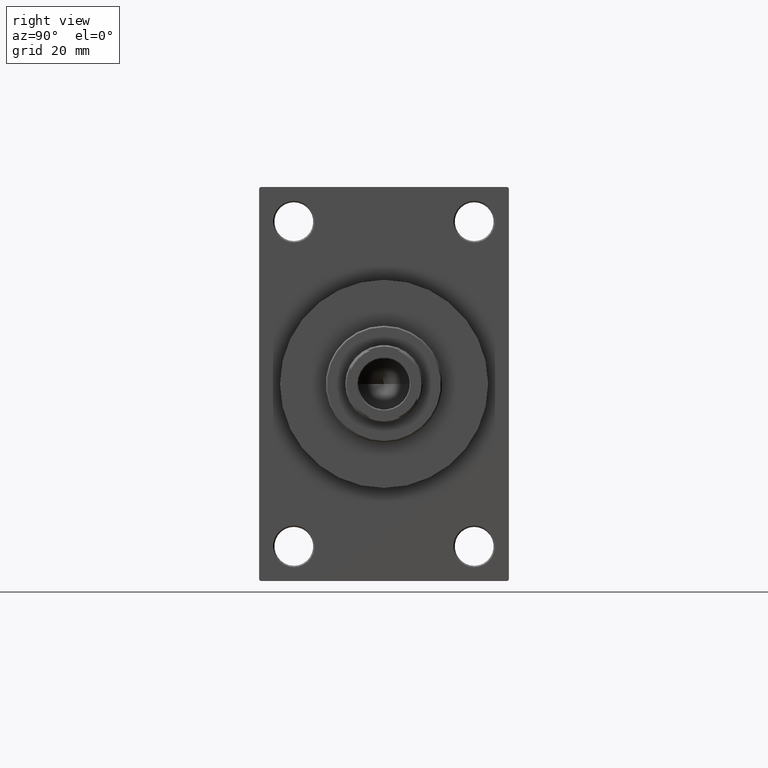
[diagram: clean part render]
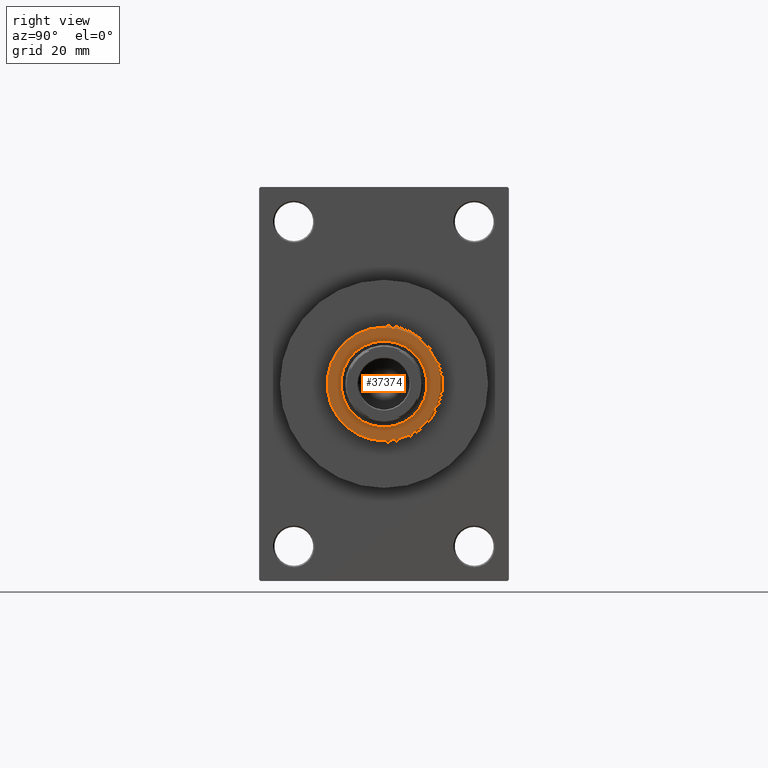
[diagram: same view with one face highlighted and labeled with its STEP entity id]
A machine part, right view. The second image highlights one B-rep face of the part: STEP entity #37374.
In plain terms, the highlighted planar face has unit normal (1, -0, -0).
Its self-contained STEP definition (entity closure, byte-faithful):
#376 = DIRECTION ( 'NONE',  ( 1.000000000000000000, 0.000000000000000000, 0.000000000000000000 ) ) ;
#607 = DIRECTION ( 'NONE',  ( 0.000000000000000000, 0.000000000000000000, 1.000000000000000000 ) ) ;
#1897 = CARTESIAN_POINT ( 'NONE',  ( 15.50000000000000000, 0.000000000000000000, 54.26000000000000512 ) ) ;
#2314 = VERTEX_POINT ( 'NONE', #36005 ) ;
#3047 = DIRECTION ( 'NONE',  ( 0.000000000000000000, 0.000000000000000000, 1.000000000000000000 ) ) ;
#5458 = CARTESIAN_POINT ( 'NONE',  ( 0.000000000000000000, 0.000000000000000000, 54.26000000000000512 ) ) ;
#5862 = DIRECTION ( 'NONE',  ( 0.000000000000000000, 0.000000000000000000, 1.000000000000000000 ) ) ;
#6853 = VERTEX_POINT ( 'NONE', #34775 ) ;
#8265 = DIRECTION ( 'NONE',  ( 0.000000000000000000, 0.000000000000000000, 1.000000000000000000 ) ) ;
#8588 = EDGE_LOOP ( 'NONE', ( #44146, #21709 ) ) ;
#8648 = EDGE_CURVE ( 'NONE', #29386, #40637, #16842, .T. ) ;
#12334 = PLANE ( 'NONE',  #20036 ) ;
#13968 = DIRECTION ( 'NONE',  ( 1.000000000000000000, 0.000000000000000000, 0.000000000000000000 ) ) ;
#14205 = ORIENTED_EDGE ( 'NONE', *, *, #22963, .T. ) ;
#14791 = ORIENTED_EDGE ( 'NONE', *, *, #25190, .T. ) ;
#16842 = CIRCLE ( 'NONE', #20645, 15.50000000000000000 ) ;
#19763 = DIRECTION ( 'NONE',  ( 0.000000000000000000, 0.000000000000000000, 1.000000000000000000 ) ) ;
#20036 = AXIS2_PLACEMENT_3D ( 'NONE', #26403, #8265, #33834 ) ;
#20645 = AXIS2_PLACEMENT_3D ( 'NONE', #5458, #19763, #38177 ) ;
#21115 = CARTESIAN_POINT ( 'NONE',  ( 0.000000000000000000, 0.000000000000000000, 54.26000000000000512 ) ) ;
#21624 = CARTESIAN_POINT ( 'NONE',  ( -15.50000000000000000, 1.898202538678397557E-15, 54.26000000000000512 ) ) ;
#21709 = ORIENTED_EDGE ( 'NONE', *, *, #8648, .F. ) ;
#22486 = CIRCLE ( 'NONE', #25523, 15.50000000000000000 ) ;
#22963 = EDGE_CURVE ( 'NONE', #6853, #2314, #23261, .T. ) ;
#23261 = CIRCLE ( 'NONE', #44608, 20.50000000000001776 ) ;
#25190 = EDGE_CURVE ( 'NONE', #2314, #6853, #46324, .T. ) ;
#25523 = AXIS2_PLACEMENT_3D ( 'NONE', #43814, #607, #376 ) ;
#25691 = AXIS2_PLACEMENT_3D ( 'NONE', #42692, #3047, #28593 ) ;
#26403 = CARTESIAN_POINT ( 'NONE',  ( 0.000000000000000000, 0.000000000000000000, 54.26000000000000512 ) ) ;
#28593 = DIRECTION ( 'NONE',  ( 1.000000000000000000, 0.000000000000000000, 0.000000000000000000 ) ) ;
#29386 = VERTEX_POINT ( 'NONE', #21624 ) ;
#31598 = EDGE_LOOP ( 'NONE', ( #14205, #14791 ) ) ;
#33597 = FACE_BOUND ( 'NONE', #8588, .T. ) ;
#33834 = DIRECTION ( 'NONE',  ( 1.000000000000000000, 0.000000000000000000, -0.000000000000000000 ) ) ;
#34775 = CARTESIAN_POINT ( 'NONE',  ( -20.50000000000001776, 0.000000000000000000, 54.26000000000000512 ) ) ;
#36005 = CARTESIAN_POINT ( 'NONE',  ( 20.50000000000001776, 2.541142108230759057E-15, 54.26000000000000512 ) ) ;
#37374 = ADVANCED_FACE ( 'NONE', ( #33597, #38128 ), #12334, .T. ) ;
#38128 = FACE_OUTER_BOUND ( 'NONE', #31598, .T. ) ;
#38177 = DIRECTION ( 'NONE',  ( 1.000000000000000000, 0.000000000000000000, 0.000000000000000000 ) ) ;
#40637 = VERTEX_POINT ( 'NONE', #1897 ) ;
#42692 = CARTESIAN_POINT ( 'NONE',  ( 0.000000000000000000, 0.000000000000000000, 54.26000000000000512 ) ) ;
#43814 = CARTESIAN_POINT ( 'NONE',  ( 0.000000000000000000, 0.000000000000000000, 54.26000000000000512 ) ) ;
#44146 = ORIENTED_EDGE ( 'NONE', *, *, #45975, .F. ) ;
#44608 = AXIS2_PLACEMENT_3D ( 'NONE', #21115, #5862, #13968 ) ;
#45975 = EDGE_CURVE ( 'NONE', #40637, #29386, #22486, .T. ) ;
#46324 = CIRCLE ( 'NONE', #25691, 20.50000000000001776 ) ;